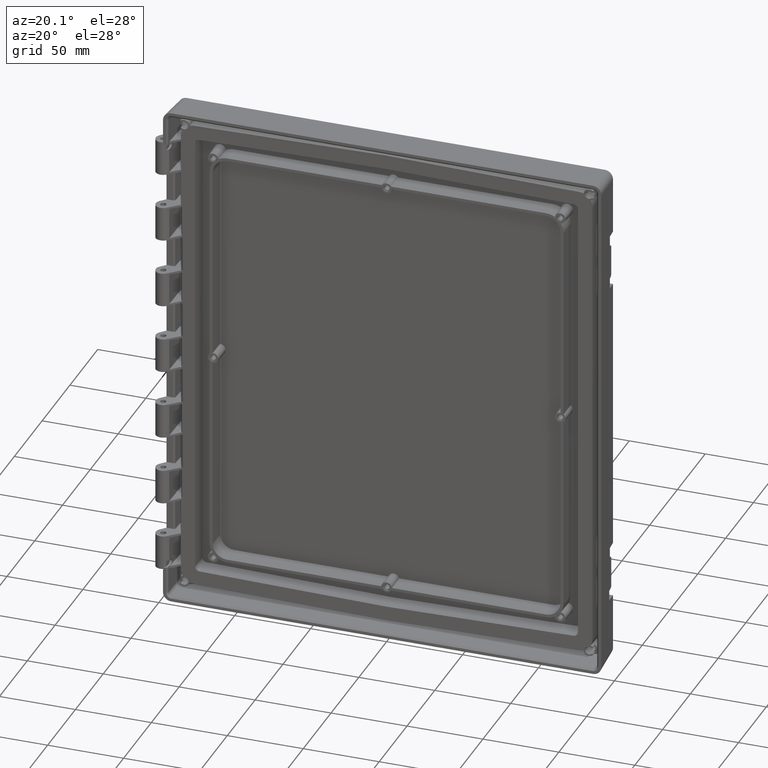
[diagram: clean part render]
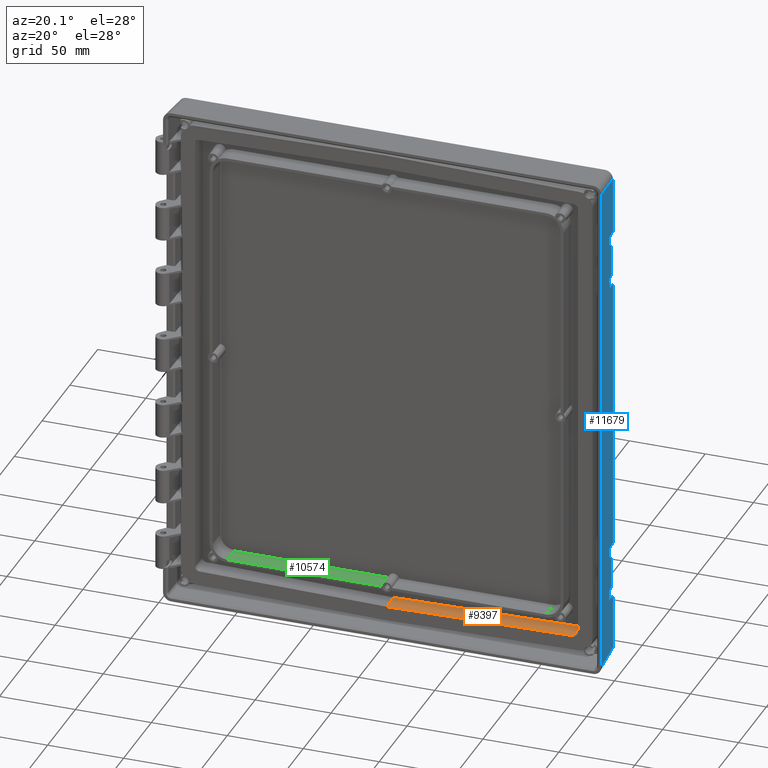
[diagram: same view with three faces highlighted in distinct colors, each labeled with its STEP entity id]
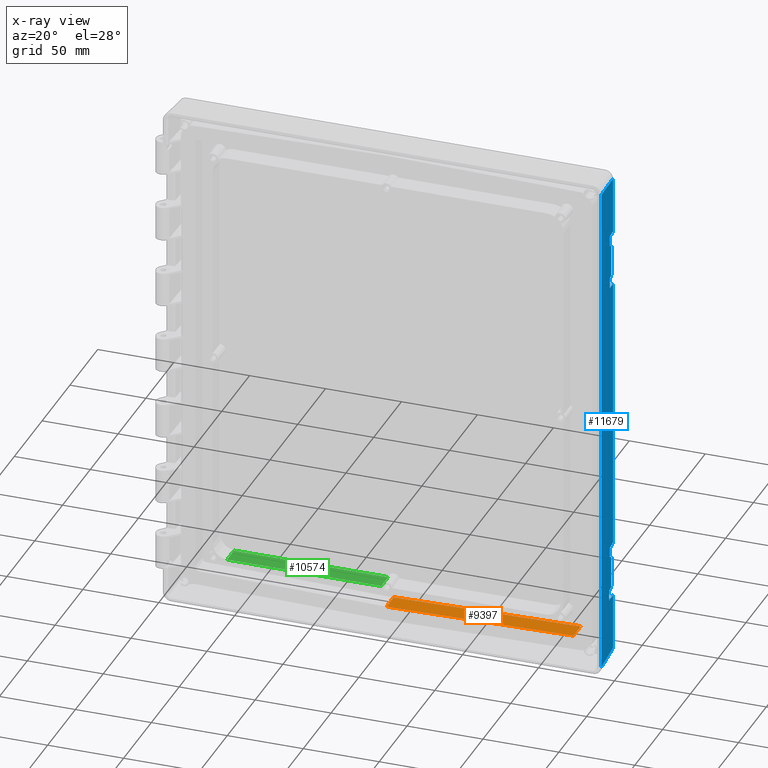
[diagram: x-ray of the same camera — body ghosted, the three highlighted faces saturated]
A machine part, auxiliary view with three faces highlighted in distinct colors.
The next image is the same camera in x-ray (body ghosted, the three faces saturated) — at least one of them is partly hidden behind the body in this view.
Their STEP definitions:

[orange] entity #9397 — the highlighted planar face has unit normal (-0.0174, -0.0175, 0.9997).
#1145=DIRECTION('',(-9.998476951564E-1,0.E0,-1.745240643728E-2));
#1146=VECTOR('',#1145,1.231340067071E2);
#1147=CARTESIAN_POINT('',(1.231152528015E2,0.E0,-1.510514199534E2));
#1148=LINE('',#1147,#1146);
#1511=DIRECTION('',(-3.045864904501E-4,9.998476951564E-1,1.744974835125E-2));
#1512=VECTOR('',#1511,1.260191933335E1);
#1513=CARTESIAN_POINT('',(1.231152528015E2,0.E0,-1.510514199534E2));
#1514=LINE('',#1513,#1512);
#1515=DIRECTION('',(9.998476951564E-1,0.E0,1.745240643728E-2));
#1516=VECTOR('',#1515,1.231301677480E2);
#1517=CARTESIAN_POINT('',(2.248984364938E-13,1.26E1,-1.529804373645E2));
#1518=LINE('',#1517,#1516);
#1527=DIRECTION('',(1.126826586039E-14,9.998476487629E-1,1.745506411830E-2));
#1528=VECTOR('',#1527,1.260191991809E1);
#1529=CARTESIAN_POINT('',(8.289665250535E-14,0.E0,-1.532004046847E2));
#1530=LINE('',#1529,#1528);
#7554=CARTESIAN_POINT('',(8.289665250535E-14,0.E0,-1.532004046847E2));
#7555=CARTESIAN_POINT('',(2.248984364938E-13,1.26E1,-1.529804373645E2));
#7556=VERTEX_POINT('',#7554);
#7557=VERTEX_POINT('',#7555);
#7660=CARTESIAN_POINT('',(1.231152528015E2,0.E0,-1.510514199534E2));
#7661=VERTEX_POINT('',#7660);
#7676=CARTESIAN_POINT('',(1.231114144271E2,1.26E1,-1.508315196323E2));
#7677=VERTEX_POINT('',#7676);
#9385=CARTESIAN_POINT('',(-7.707495022778E0,0.E0,-1.533349395107E2));
#9386=DIRECTION('',(-1.744974835125E-2,-1.745240643728E-2,9.996954135095E-1));
#9387=DIRECTION('',(-9.998476951564E-1,0.E0,-1.745240643728E-2));
#9388=AXIS2_PLACEMENT_3D('',#9385,#9386,#9387);
#9389=PLANE('',#9388);
#9390=ORIENTED_EDGE('',*,*,#9380,.F.);
#9391=ORIENTED_EDGE('',*,*,#9103,.T.);
#9393=ORIENTED_EDGE('',*,*,#9392,.T.);
#9394=ORIENTED_EDGE('',*,*,#9184,.T.);
#9395=EDGE_LOOP('',(#9390,#9391,#9393,#9394));
#9396=FACE_OUTER_BOUND('',#9395,.F.);
#9397=ADVANCED_FACE('',(#9396),#9389,.T.);
#9103=EDGE_CURVE('',#7661,#7556,#1148,.T.);
#9184=EDGE_CURVE('',#7557,#7677,#1518,.T.);
#9380=EDGE_CURVE('',#7661,#7677,#1514,.T.);
#9392=EDGE_CURVE('',#7556,#7557,#1530,.T.);

[blue] entity #11679 — the highlighted planar face has unit normal (0.9986, 0.0523, 0).
#3065=DIRECTION('',(5.226442768872E-2,-9.972646886342E-1,-5.226442768871E-2));
#3066=VECTOR('',#3065,6.618102571183E0);
#3067=CARTESIAN_POINT('',(1.429800308639E2,1.66E1,1.273699691361E2));
#3068=LINE('',#3067,#3066);
#3069=DIRECTION('',(5.226902705911E-2,-9.973524498501E-1,5.055729016048E-2));
#3070=VECTOR('',#3069,1.145104921287E0);
#3071=CARTESIAN_POINT('',(1.432660686871E2,1.114207319858E1,1.201493299361E2));
#3072=LINE('',#3071,#3070);
#3073=DIRECTION('',(5.226442768871E-2,-9.972646886342E-1,5.226442768872E-2));
#3074=VECTOR('',#3073,6.618102571183E0);
#3075=CARTESIAN_POINT('',(1.429800308639E2,1.66E1,9.063003086390E1));
#3076=LINE('',#3075,#3074);
#3077=DIRECTION('',(0.E0,0.E0,1.E0));
#3078=VECTOR('',#3077,1.812600617278E2);
#3079=CARTESIAN_POINT('',(1.429800308639E2,1.66E1,-9.063003086390E1));
#3080=LINE('',#3079,#3078);
#3081=DIRECTION('',(5.226442768871E-2,-9.972646886342E-1,-5.226442768871E-2));
#3082=VECTOR('',#3081,6.618102571183E0);
#3083=CARTESIAN_POINT('',(1.429800308639E2,1.66E1,-9.063003086390E1));
#3084=LINE('',#3083,#3082);
#3085=DIRECTION('',(5.226902705911E-2,-9.973524498501E-1,5.055729016038E-2));
#3086=VECTOR('',#3085,1.145104921287E0);
#3087=CARTESIAN_POINT('',(1.432660686871E2,1.114207319858E1,-9.785067006392E1));
#3088=LINE('',#3087,#3086);
#3089=DIRECTION('',(0.E0,0.E0,1.E0));
#3090=VECTOR('',#3089,1.830414173314E1);
#3091=CARTESIAN_POINT('',(1.431633757005E2,1.310157211116E1,-1.181520708666E2));
#3092=LINE('',#3091,#3090);
#3093=DIRECTION('',(5.226442768871E-2,-9.972646886342E-1,5.226442768870E-2));
#3094=VECTOR('',#3093,8.154856858672E0);
#3095=CARTESIAN_POINT('',(1.429800308639E2,1.66E1,-1.273699691361E2));
#3096=LINE('',#3095,#3094);
#3097=DIRECTION('',(0.E0,0.E0,1.E0));
#3098=VECTOR('',#3097,3.676759928665E1);
#3099=CARTESIAN_POINT('',(1.429800308639E2,1.66E1,-1.641375684228E2));
#3100=LINE('',#3099,#3098);
#3101=DIRECTION('',(0.E0,0.E0,-1.E0));
#3102=VECTOR('',#3101,3.308535995862E2);
#3103=CARTESIAN_POINT('',(1.442692622343E2,-8.E0,1.654267997931E2));
#3104=LINE('',#3103,#3102);
#3105=DIRECTION('',(0.E0,0.E0,1.E0));
#3106=VECTOR('',#3105,3.676759928665E1);
#3107=CARTESIAN_POINT('',(1.429800308639E2,1.66E1,1.273699691361E2));
#3108=LINE('',#3107,#3106);
#3109=DIRECTION('',(0.E0,0.E0,1.E0));
#3110=VECTOR('',#3109,6.816854454981E0);
#3111=CARTESIAN_POINT('',(1.433259222072E2,1.E1,-9.779277666215E1));
#3112=LINE('',#3111,#3110);
#3129=DIRECTION('',(0.E0,0.E0,1.E0));
#3130=VECTOR('',#3129,6.816854454981E0);
#3131=CARTESIAN_POINT('',(1.433259222072E2,1.E1,1.202072233378E2));
#3132=LINE('',#3131,#3130);
#3141=DIRECTION('',(0.E0,0.E0,1.E0));
#3142=VECTOR('',#3141,6.816854454981E0);
#3143=CARTESIAN_POINT('',(1.433259222072E2,1.E1,9.097592220717E1));
#3144=LINE('',#3143,#3142);
#3175=DIRECTION('',(0.E0,0.E0,1.E0));
#3176=VECTOR('',#3175,6.658849575861E0);
#3177=CARTESIAN_POINT('',(1.434062397905E2,8.467449213980E0,-1.269437602095E2));
#3178=LINE('',#3177,#3176);
#3185=DIRECTION('',(-5.226902705913E-2,9.973524498501E-1,5.055729016052E-2));
#3186=VECTOR('',#3185,2.681723983336E0);
#3187=CARTESIAN_POINT('',(1.434062397905E2,8.467449213980E0,-1.202849106336E2));
#3188=LINE('',#3187,#3186);
#3201=CARTESIAN_POINT('',(1.431633757005E2,1.310157211116E1,-1.181520708666E2));
#3202=CARTESIAN_POINT('',(1.431633757005E2,1.310157211116E1,-1.187958424814E2));
#3203=CARTESIAN_POINT('',(1.431891213708E2,1.261031545863E1,-1.196157275153E2));
#3204=CARTESIAN_POINT('',(1.432324193711E2,1.178414039582E1,-1.201167825877E2));
#3205=CARTESIAN_POINT('',(1.432660686871E2,1.114207319858E1,-1.201493299361E2));
#3221=CARTESIAN_POINT('',(1.432660686871E2,1.114207319858E1,-9.785067006392E1));
#3222=CARTESIAN_POINT('',(1.432324193711E2,1.178414039582E1,-9.788321741225E1));
#3223=CARTESIAN_POINT('',(1.431891213708E2,1.261031545863E1,-9.838427248473E1));
#3224=CARTESIAN_POINT('',(1.431633757005E2,1.310157211116E1,-9.920415751855E1));
#3225=CARTESIAN_POINT('',(1.431633757005E2,1.310157211116E1,-9.984792913343E1));
#3257=DIRECTION('',(5.226902705911E-2,-9.973524498501E-1,-5.055729016052E-2));
#3258=VECTOR('',#3257,1.145104921287E0);
#3259=CARTESIAN_POINT('',(1.432660686871E2,1.114207319858E1,9.785067006392E1));
#3260=LINE('',#3259,#3258);
#3269=CARTESIAN_POINT('',(1.431633757005E2,1.310157211116E1,9.984792913343E1));
#3270=CARTESIAN_POINT('',(1.431633757005E2,1.310157211116E1,9.920415751855E1));
#3271=CARTESIAN_POINT('',(1.431891213708E2,1.261031545863E1,9.838427248473E1));
#3272=CARTESIAN_POINT('',(1.432324193711E2,1.178414039582E1,9.788321741225E1));
#3273=CARTESIAN_POINT('',(1.432660686871E2,1.114207319858E1,9.785067006392E1));
#3285=DIRECTION('',(0.E0,0.E0,-1.E0));
#3286=VECTOR('',#3285,1.830414173314E1);
#3287=CARTESIAN_POINT('',(1.431633757005E2,1.310157211116E1,1.181520708666E2));
#3288=LINE('',#3287,#3286);
#3305=CARTESIAN_POINT('',(1.432660686871E2,1.114207319858E1,1.201493299361E2));
#3306=CARTESIAN_POINT('',(1.432324193711E2,1.178414039582E1,1.201167825877E2));
#3307=CARTESIAN_POINT('',(1.431891213708E2,1.261031545863E1,1.196157275153E2));
#3308=CARTESIAN_POINT('',(1.431633757005E2,1.310157211116E1,1.187958424814E2));
#3309=CARTESIAN_POINT('',(1.431633757005E2,1.310157211116E1,1.181520708666E2));
#3321=DIRECTION('',(-5.226442768871E-2,9.972646886342E-1,5.226442768872E-2));
#3322=VECTOR('',#3321,2.466747321986E1);
#3323=CARTESIAN_POINT('',(1.442692622343E2,-8.E0,-1.654267997931E2));
#3324=LINE('',#3323,#3322);
#3331=CARTESIAN_POINT('',(1.429800308639E2,1.66E1,-1.641375684228E2));
#3337=CARTESIAN_POINT('',(1.442692622343E2,-8.E0,-1.654267997931E2));
#6789=CARTESIAN_POINT('',(1.429800308639E2,1.66E1,1.641375684228E2));
#6797=DIRECTION('',(5.226442768871E-2,-9.972646886342E-1,5.226442768871E-2));
#6798=VECTOR('',#6797,2.466747321986E1);
#6799=CARTESIAN_POINT('',(1.429800308639E2,1.66E1,1.641375684228E2));
#6800=LINE('',#6799,#6798);
#6954=CARTESIAN_POINT('',(1.432660686871E2,1.114207319858E1,-9.785067006392E1));
#6955=VERTEX_POINT('',#6954);
#6957=CARTESIAN_POINT('',(1.432660686871E2,1.114207319858E1,-1.201493299361E2));
#6959=VERTEX_POINT('',#6957);
#6962=CARTESIAN_POINT('',(1.432660686871E2,1.114207319858E1,9.785067006392E1));
#6963=VERTEX_POINT('',#6962);
#7004=CARTESIAN_POINT('',(1.431633757005E2,1.310157211116E1,1.181520708666E2));
#7005=VERTEX_POINT('',#7004);
#7006=CARTESIAN_POINT('',(1.431633757005E2,1.310157211116E1,-1.181520708666E2));
#7007=VERTEX_POINT('',#7006);
#7008=CARTESIAN_POINT('',(1.431633757005E2,1.310157211116E1,-9.984792913343E1));
#7009=VERTEX_POINT('',#7008);
#7012=CARTESIAN_POINT('',(1.432660686871E2,1.114207319858E1,1.201493299361E2));
#7013=VERTEX_POINT('',#7012);
#7014=CARTESIAN_POINT('',(1.431633757005E2,1.310157211116E1,9.984792913343E1));
#7015=VERTEX_POINT('',#7014);
#7134=VERTEX_POINT('',#3337);
#7135=CARTESIAN_POINT('',(1.442692622343E2,-8.E0,1.654267997931E2));
#7136=VERTEX_POINT('',#7135);
#7171=VERTEX_POINT('',#3331);
#7177=VERTEX_POINT('',#6789);
#7194=CARTESIAN_POINT('',(1.433259222072E2,1.E1,1.202072233378E2));
#7195=VERTEX_POINT('',#7194);
#7196=CARTESIAN_POINT('',(1.433259222072E2,1.E1,-9.779277666215E1));
#7197=VERTEX_POINT('',#7196);
#7198=CARTESIAN_POINT('',(1.433259222072E2,1.E1,9.779277666215E1));
#7199=VERTEX_POINT('',#7198);
#7200=CARTESIAN_POINT('',(1.434062397905E2,8.467449213980E0,-1.202849106336E2));
#7201=VERTEX_POINT('',#7200);
#7224=CARTESIAN_POINT('',(1.429800308639E2,1.66E1,-1.273699691361E2));
#7225=CARTESIAN_POINT('',(1.434062397905E2,8.467449213980E0,-1.269437602095E2));
#7226=VERTEX_POINT('',#7224);
#7227=VERTEX_POINT('',#7225);
#7462=CARTESIAN_POINT('',(1.433259222072E2,1.E1,-9.097592220717E1));
#7463=VERTEX_POINT('',#7462);
#7464=CARTESIAN_POINT('',(1.433259222072E2,1.E1,1.270240777928E2));
#7465=VERTEX_POINT('',#7464);
#7466=CARTESIAN_POINT('',(1.433259222072E2,1.E1,9.097592220717E1));
#7467=VERTEX_POINT('',#7466);
#7468=CARTESIAN_POINT('',(1.429800308639E2,1.66E1,9.063003086390E1));
#7469=VERTEX_POINT('',#7468);
#7470=CARTESIAN_POINT('',(1.429800308639E2,1.66E1,1.273699691361E2));
#7471=VERTEX_POINT('',#7470);
#7472=CARTESIAN_POINT('',(1.429800308639E2,1.66E1,-9.063003086390E1));
#7473=VERTEX_POINT('',#7472);
#11628=CARTESIAN_POINT('',(1.4385E2,0.E0,1.705E2));
#11629=DIRECTION('',(9.986295347546E-1,5.233595624294E-2,0.E0));
#11630=DIRECTION('',(-5.233595624294E-2,9.986295347546E-1,0.E0));
#11631=AXIS2_PLACEMENT_3D('',#11628,#11629,#11630);
#11632=PLANE('',#11631);
#11633=ORIENTED_EDGE('',*,*,#11618,.T.);
#11635=ORIENTED_EDGE('',*,*,#11634,.F.);
#11637=ORIENTED_EDGE('',*,*,#11636,.F.);
#11639=ORIENTED_EDGE('',*,*,#11638,.T.);
#11641=ORIENTED_EDGE('',*,*,#11640,.T.);
#11643=ORIENTED_EDGE('',*,*,#11642,.T.);
#11645=ORIENTED_EDGE('',*,*,#11644,.T.);
#11647=ORIENTED_EDGE('',*,*,#11646,.F.);
#11649=ORIENTED_EDGE('',*,*,#11648,.F.);
#11650=ORIENTED_EDGE('',*,*,#11581,.F.);
#11652=ORIENTED_EDGE('',*,*,#11651,.T.);
#11654=ORIENTED_EDGE('',*,*,#11653,.F.);
#11656=ORIENTED_EDGE('',*,*,#11655,.F.);
#11658=ORIENTED_EDGE('',*,*,#11657,.T.);
#11660=ORIENTED_EDGE('',*,*,#11659,.F.);
#11662=ORIENTED_EDGE('',*,*,#11661,.T.);
#11664=ORIENTED_EDGE('',*,*,#11663,.F.);
#11666=ORIENTED_EDGE('',*,*,#11665,.F.);
#11668=ORIENTED_EDGE('',*,*,#11667,.F.);
#11669=ORIENTED_EDGE('',*,*,#11573,.F.);
#11671=ORIENTED_EDGE('',*,*,#11670,.F.);
#11673=ORIENTED_EDGE('',*,*,#11672,.F.);
#11675=ORIENTED_EDGE('',*,*,#11674,.F.);
#11676=ORIENTED_EDGE('',*,*,#11558,.F.);
#11677=EDGE_LOOP('',(#11633,#11635,#11637,#11639,#11641,#11643,#11645,#11647,
#11649,#11650,#11652,#11654,#11656,#11658,#11660,#11662,#11664,#11666,#11668,
#11669,#11671,#11673,#11675,#11676));
#11678=FACE_OUTER_BOUND('',#11677,.F.);
#11679=ADVANCED_FACE('',(#11678),#11632,.T.);
#3206=B_SPLINE_CURVE_WITH_KNOTS('',3,(#3201,#3202,#3203,#3204,#3205),
.UNSPECIFIED.,.F.,.F.,(4,1,4),(0.E0,5.E-1,1.E0),.UNSPECIFIED.);
#3226=B_SPLINE_CURVE_WITH_KNOTS('',3,(#3221,#3222,#3223,#3224,#3225),
.UNSPECIFIED.,.F.,.F.,(4,1,4),(0.E0,5.E-1,1.E0),.UNSPECIFIED.);
#3274=B_SPLINE_CURVE_WITH_KNOTS('',3,(#3269,#3270,#3271,#3272,#3273),
.UNSPECIFIED.,.F.,.F.,(4,1,4),(0.E0,5.E-1,1.E0),.UNSPECIFIED.);
#3310=B_SPLINE_CURVE_WITH_KNOTS('',3,(#3305,#3306,#3307,#3308,#3309),
.UNSPECIFIED.,.F.,.F.,(4,1,4),(0.E0,5.E-1,1.E0),.UNSPECIFIED.);
#11558=EDGE_CURVE('',#7471,#7177,#3108,.T.);
#11573=EDGE_CURVE('',#7171,#7226,#3100,.T.);
#11581=EDGE_CURVE('',#7473,#7469,#3080,.T.);
#11618=EDGE_CURVE('',#7471,#7465,#3068,.T.);
#11634=EDGE_CURVE('',#7195,#7465,#3132,.T.);
#11636=EDGE_CURVE('',#7013,#7195,#3072,.T.);
#11638=EDGE_CURVE('',#7013,#7005,#3310,.T.);
#11640=EDGE_CURVE('',#7005,#7015,#3288,.T.);
#11642=EDGE_CURVE('',#7015,#6963,#3274,.T.);
#11644=EDGE_CURVE('',#6963,#7199,#3260,.T.);
#11646=EDGE_CURVE('',#7467,#7199,#3144,.T.);
#11648=EDGE_CURVE('',#7469,#7467,#3076,.T.);
#11651=EDGE_CURVE('',#7473,#7463,#3084,.T.);
#11653=EDGE_CURVE('',#7197,#7463,#3112,.T.);
#11655=EDGE_CURVE('',#6955,#7197,#3088,.T.);
#11657=EDGE_CURVE('',#6955,#7009,#3226,.T.);
#11659=EDGE_CURVE('',#7007,#7009,#3092,.T.);
#11661=EDGE_CURVE('',#7007,#6959,#3206,.T.);
#11663=EDGE_CURVE('',#7201,#6959,#3188,.T.);
#11665=EDGE_CURVE('',#7227,#7201,#3178,.T.);
#11667=EDGE_CURVE('',#7226,#7227,#3096,.T.);
#11670=EDGE_CURVE('',#7134,#7171,#3324,.T.);
#11672=EDGE_CURVE('',#7136,#7134,#3104,.T.);
#11674=EDGE_CURVE('',#7177,#7136,#6800,.T.);

[green] entity #10574 — the highlighted planar face has unit normal (0, -0.0175, 0.9998).
#1704=DIRECTION('',(-1.E0,0.E0,0.E0));
#1705=VECTOR('',#1704,1.015057189581E2);
#1706=CARTESIAN_POINT('',(-3.494281041931E0,0.E0,-1.395E2));
#1707=LINE('',#1706,#1705);
#2122=CARTESIAN_POINT('',(-3.475742237350E0,1.210872620322E1,
-1.392886413979E2));
#2340=DIRECTION('',(-1.686447393664E-11,-9.998476951564E-1,-1.745240643728E-2));
#2341=VECTOR('',#2340,1.211057070231E1);
#2342=CARTESIAN_POINT('',(-1.049999999998E2,1.210872620373E1,
-1.392886413979E2));
#2343=LINE('',#2342,#2341);
#2357=DIRECTION('',(-1.E0,5.042808178861E-12,8.818422973873E-14));
#2358=VECTOR('',#2357,1.015242577624E2);
#2359=CARTESIAN_POINT('',(-3.475742237350E0,1.210872620322E1,
-1.392886413979E2));
#2360=LINE('',#2359,#2358);
#2361=CARTESIAN_POINT('',(-3.475742237350E0,1.210872620322E1,
-1.392886413979E2));
#2362=CARTESIAN_POINT('',(-3.484080418753E0,8.072487442380E0,
-1.393590942076E2));
#2363=CARTESIAN_POINT('',(-3.490248571507E0,4.036245357101E0,
-1.394295470752E2));
#2364=CARTESIAN_POINT('',(-3.494281041931E0,-1.065814103640E-14,-1.395E2));
#8174=CARTESIAN_POINT('',(-1.05E2,0.E0,-1.395E2));
#8176=VERTEX_POINT('',#8174);
#8179=CARTESIAN_POINT('',(-3.494281041931E0,0.E0,-1.395E2));
#8181=VERTEX_POINT('',#8179);
#8214=CARTESIAN_POINT('',(-1.05E2,1.210872620322E1,-1.392886413979E2));
#8215=VERTEX_POINT('',#8214);
#8217=VERTEX_POINT('',#2122);
#10563=CARTESIAN_POINT('',(1.127092770185E2,0.E0,-1.395E2));
#10564=DIRECTION('',(0.E0,-1.745240643728E-2,9.998476951564E-1));
#10565=DIRECTION('',(-1.E0,0.E0,0.E0));
#10566=AXIS2_PLACEMENT_3D('',#10563,#10564,#10565);
#10567=PLANE('',#10566);
#10568=ORIENTED_EDGE('',*,*,#10153,.F.);
#10569=ORIENTED_EDGE('',*,*,#10170,.T.);
#10570=ORIENTED_EDGE('',*,*,#9633,.T.);
#10571=ORIENTED_EDGE('',*,*,#10543,.F.);
#10572=EDGE_LOOP('',(#10568,#10569,#10570,#10571));
#10573=FACE_OUTER_BOUND('',#10572,.F.);
#10574=ADVANCED_FACE('',(#10573),#10567,.T.);
#2365=B_SPLINE_CURVE_WITH_KNOTS('',3,(#2361,#2362,#2363,#2364),.UNSPECIFIED.,
.F.,.F.,(4,4),(0.E0,1.E0),.UNSPECIFIED.);
#9633=EDGE_CURVE('',#8181,#8176,#1707,.T.);
#10153=EDGE_CURVE('',#8217,#8215,#2360,.T.);
#10170=EDGE_CURVE('',#8217,#8181,#2365,.T.);
#10543=EDGE_CURVE('',#8215,#8176,#2343,.T.);